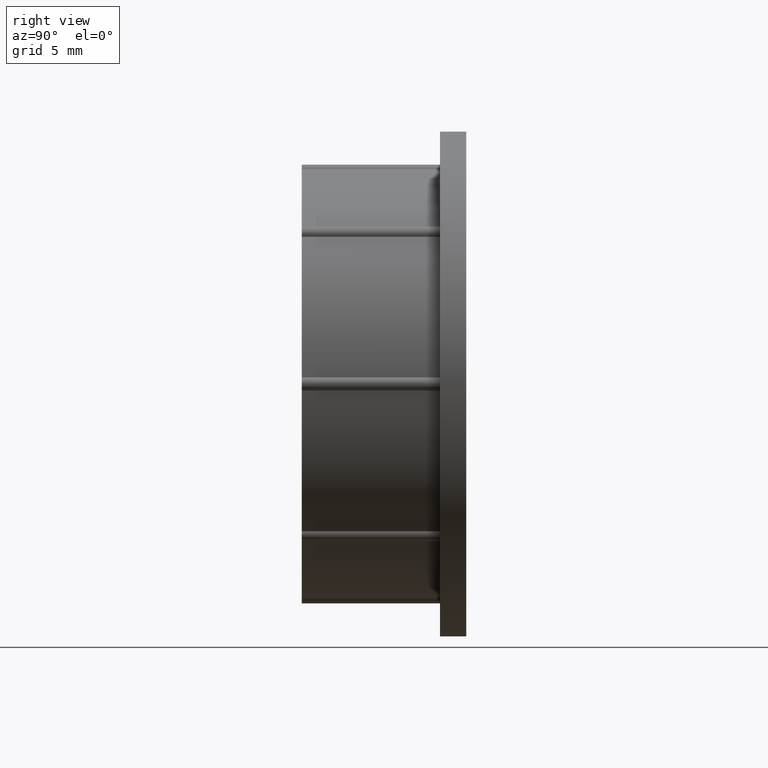
[diagram: clean part render]
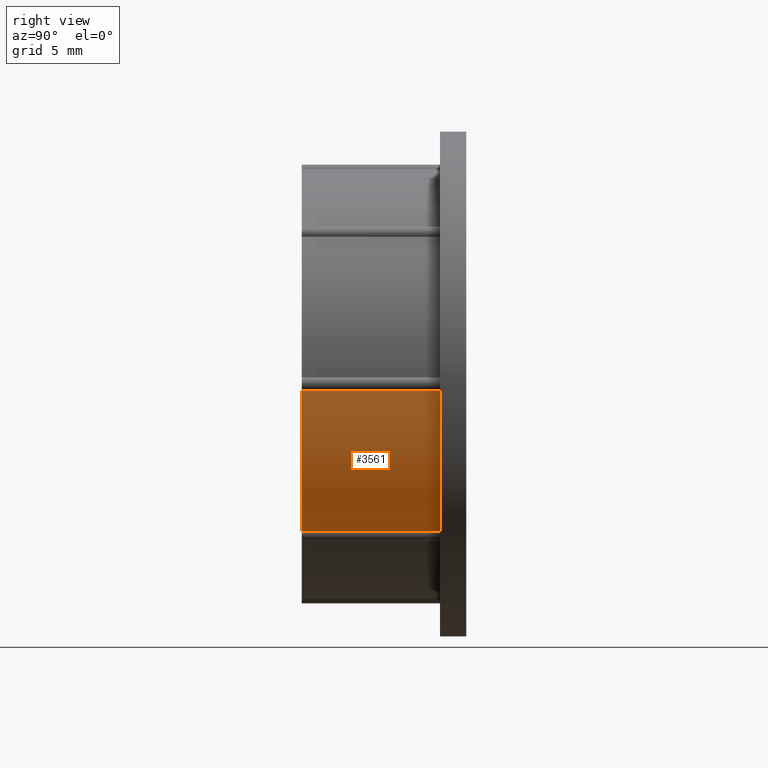
[diagram: same view with one face highlighted and labeled with its STEP entity id]
A machine part, right view. The second image highlights one B-rep face of the part: STEP entity #3561.
In plain terms, the highlighted cylindrical surface (partial cylindrical patch) has radius 9.8 mm, axis along (-0, -1, -0).
Its self-contained STEP definition (entity closure, byte-faithful):
#543 = DIRECTION ( 'NONE',  ( -0.000000000000000000, -1.000000000000000000, -0.000000000000000000 ) ) ;
#748 = ORIENTED_EDGE ( 'NONE', *, *, #5358, .F. ) ;
#865 = VERTEX_POINT ( 'NONE', #7316 ) ;
#1960 = EDGE_LOOP ( 'NONE', ( #4800, #6557, #748, #11432 ) ) ;
#2016 = CARTESIAN_POINT ( 'NONE',  ( 9.795348837209306936, 6.299999999999998934, -0.3018959380023086836 ) ) ;
#2207 = CARTESIAN_POINT ( 'NONE',  ( 9.795348837209308712, 7.501999999999998003, -0.3018959380023288896 ) ) ;
#2398 = EDGE_CURVE ( 'NONE', #865, #14217, #3164, .T. ) ;
#2463 = CARTESIAN_POINT ( 'NONE',  ( 0.000000000000000000, 0.000000000000000000, 0.000000000000000000 ) ) ;
#2635 = LINE ( 'NONE', #11930, #6124 ) ;
#3164 = CIRCLE ( 'NONE', #8903, 9.800000000000000711 ) ;
#3481 = CIRCLE ( 'NONE', #10955, 9.800000000000000711 ) ;
#3561 = ADVANCED_FACE ( 'NONE', ( #8950 ), #7749, .T. ) ;
#3835 = CARTESIAN_POINT ( 'NONE',  ( 9.795348837209306936, 1.200763985293232679E-18, -0.3018959380023086836 ) ) ;
#4800 = ORIENTED_EDGE ( 'NONE', *, *, #8401, .T. ) ;
#4895 = DIRECTION ( 'NONE',  ( -0.000000000000000000, -1.000000000000000000, -0.000000000000000000 ) ) ;
#5358 = EDGE_CURVE ( 'NONE', #865, #12229, #2635, .T. ) ;
#5395 = CARTESIAN_POINT ( 'NONE',  ( 0.000000000000000000, 6.299999999999998934, 0.000000000000000000 ) ) ;
#6124 = VECTOR ( 'NONE', #10989, 1000.000000000000000 ) ;
#6557 = ORIENTED_EDGE ( 'NONE', *, *, #8705, .F. ) ;
#6819 = VECTOR ( 'NONE', #9896, 1000.000000000000000 ) ;
#7316 = CARTESIAN_POINT ( 'NONE',  ( 7.139830251852714582, 6.299999999999998934, -6.712884921904207935 ) ) ;
#7749 = CYLINDRICAL_SURFACE ( 'NONE', #10242, 9.800000000000000711 ) ;
#8401 = EDGE_CURVE ( 'NONE', #14217, #10397, #11551, .T. ) ;
#8656 = DIRECTION ( 'NONE',  ( 0.000000000000000000, 0.000000000000000000, -1.000000000000000000 ) ) ;
#8705 = EDGE_CURVE ( 'NONE', #12229, #10397, #3481, .T. ) ;
#8903 = AXIS2_PLACEMENT_3D ( 'NONE', #5395, #13259, #8656 ) ;
#8950 = FACE_OUTER_BOUND ( 'NONE', #1960, .T. ) ;
#9366 = CARTESIAN_POINT ( 'NONE',  ( 0.000000000000000000, -9.653098299161472237E-17, 0.000000000000000000 ) ) ;
#9896 = DIRECTION ( 'NONE',  ( 0.000000000000000000, -1.000000000000000000, 0.000000000000000000 ) ) ;
#10242 = AXIS2_PLACEMENT_3D ( 'NONE', #2463, #543, #12812 ) ;
#10397 = VERTEX_POINT ( 'NONE', #3835 ) ;
#10955 = AXIS2_PLACEMENT_3D ( 'NONE', #9366, #4895, #13878 ) ;
#10989 = DIRECTION ( 'NONE',  ( 0.000000000000000000, -1.000000000000000000, -0.000000000000000000 ) ) ;
#11432 = ORIENTED_EDGE ( 'NONE', *, *, #2398, .T. ) ;
#11551 = LINE ( 'NONE', #2207, #6819 ) ;
#11908 = CARTESIAN_POINT ( 'NONE',  ( 7.139830251852699483, 1.200763985293232679E-18, -6.712884921904222146 ) ) ;
#11930 = CARTESIAN_POINT ( 'NONE',  ( 7.139830251852714582, 7.501999999999998003, -6.712884921904207935 ) ) ;
#12229 = VERTEX_POINT ( 'NONE', #11908 ) ;
#12812 = DIRECTION ( 'NONE',  ( 0.000000000000000000, 0.000000000000000000, -1.000000000000000000 ) ) ;
#13259 = DIRECTION ( 'NONE',  ( -0.000000000000000000, -1.000000000000000000, -0.000000000000000000 ) ) ;
#13878 = DIRECTION ( 'NONE',  ( 0.000000000000000000, 0.000000000000000000, -1.000000000000000000 ) ) ;
#14217 = VERTEX_POINT ( 'NONE', #2016 ) ;